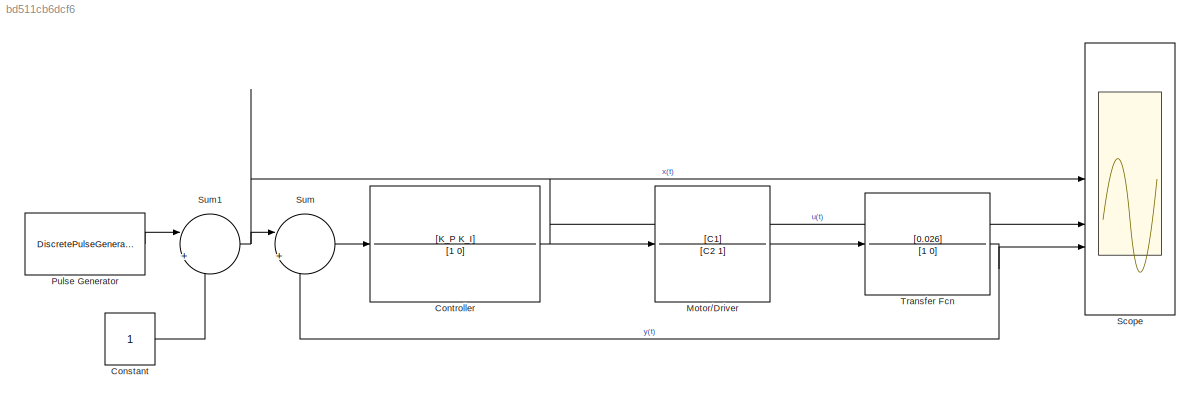
MODEL slx_bd511cb6dcf6
KIND model
CONFIG AbsTol = auto
CONFIG EnableMultiTasking = off
CONFIG FixedStep = auto
CONFIG MaxStep = auto
CONFIG MinStep = auto
CONFIG RelTol = 1e-3
CONFIG SampleTimeConstraint = Unconstrained
CONFIG SolverName = VariableStepAuto
CONFIG StartTime = 0.0
CONFIG StopTime = 200
BLOCK [Constant] Constant
BLOCK [TransferFcn] Controller
  Denominator = [1 0]
  Numerator = [K_P K_I]
BLOCK [TransferFcn] Motor//Driver
  Denominator = [C2 1]
  Numerator = [C1]
BLOCK [DiscretePulseGenerator] Pulse Generator
  Amplitude = 3
  Period = 60
  PulseType = Time based
  PulseWidth = 50
BLOCK [Scope] Scope
  Floating = off
  NumInputPorts = 3
  ScopeSpecificationString = Simulink.scopes.TimeScopeBlockCfg('CurrentConfiguration', extmgr.ConfigurationSet(extmgr.Configuration('Core','General UI',true,'FigureColor',[1 1 1]),extmgr.Configuration('Core','Source UI',true),extmgr.Configuration('Sources','WiredSimulink',true),extmgr.Configuration('Visuals','Time Domain',true,'SerializedDisplays',{struct('MinYLimReal','-10','MaxYLimReal','10','YLabelReal','','MinYLimMag','0....<+3323ch>
BLOCK [Sum] Sum
  Inputs = |+-
BLOCK [Sum] Sum1
  Inputs = |++
BLOCK [TransferFcn] Transfer Fcn
  Denominator = [1 0]
  Numerator = [0.026]
LINE Constant:1 -> Sum1:2
NET Controller:1 -> Motor//Driver:1, Scope:2
LINE Motor//Driver:1 -> Transfer Fcn:1
LINE Pulse Generator:1 -> Sum1:1
NET Sum1:1 -> Scope:1, Sum:1
LINE Sum:1 -> Controller:1
NET Transfer Fcn:1 -> Scope:3, Sum:2
note: NET lines group one-source signal fan-out (src -> all destinations, sorted); 1:1 wires keep LINE
